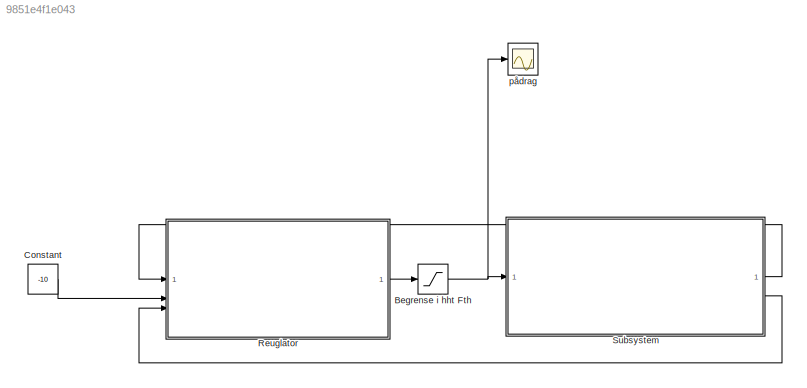
MODEL slx_9851e4f1e043
KIND model
CONFIG AbsTol = auto
CONFIG EnableMultiTasking = off
CONFIG FixedStep = auto
CONFIG MaxStep = auto
CONFIG MinStep = auto
CONFIG RelTol = 1e-3
CONFIG SampleTimeConstraint = Unconstrained
CONFIG SolverName = VariableStepAuto
CONFIG StartTime = 0.0
CONFIG StopTime = 180
BLOCK [Saturate] Begrense i hht Fth
  LowerLimit = 0
  UpperLimit = 845000*9
BLOCK [Constant] Constant
  Value = -10
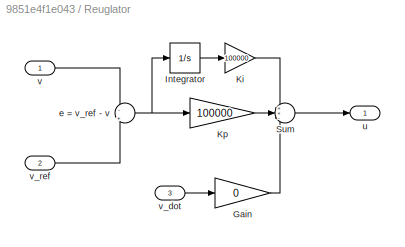
BLOCK [SubSystem] Reuglator
BLOCK [Gain] Reuglator/Gain
  Gain = 0
BLOCK [Integrator] Reuglator/Integrator
BLOCK [Gain] Reuglator/Ki
  Gain = 100000
BLOCK [Gain] Reuglator/Kp
  Gain = 100000
BLOCK [Sum] Reuglator/Sum
  Inputs = ++-
BLOCK [Sum] Reuglator/e = v_ref - v
  Inputs = -|+
  NameLocation = left
BLOCK [Outport] Reuglator/u
BLOCK [Inport] Reuglator/v
BLOCK [Inport] Reuglator/v_dot
  Port = 3
BLOCK [Inport] Reuglator/v_ref
  Port = 2
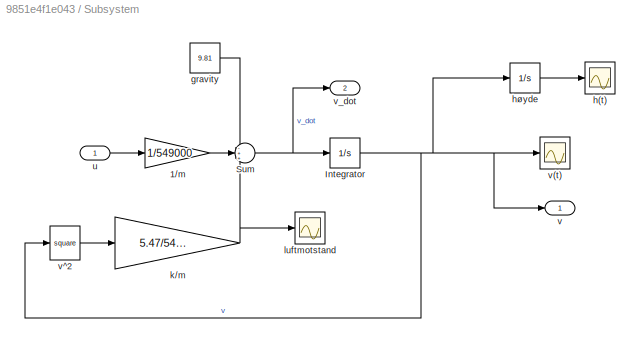
BLOCK [SubSystem] Subsystem
BLOCK [Gain] Subsystem/1//m
  Gain = 1/549000
BLOCK [Integrator] Subsystem/Integrator
  InitialCondition = -1000
BLOCK [Sum] Subsystem/Sum
  Inputs = -++
BLOCK [Constant] Subsystem/gravity
  Value = 9.81
BLOCK [Scope] Subsystem/h(t)
  Floating = off
  NumInputPorts = 1
  ScopeSpecificationString = Simulink.scopes.TimeScopeBlockCfg('CurrentConfiguration', extmgr.ConfigurationSet(extmgr.Configuration('Core','General UI',true),extmgr.Configuration('Core','Source UI',true),extmgr.Configuration('Sources','WiredSimulink',true,'DataLoggingVariableName','ScopeData1'),extmgr.Configuration('Visuals','Time Domain',true,'SerializedDisplays',{struct('MinYLimReal','-60152.07351','MaxYLimReal','17794.6748...<+1467ch>
BLOCK [Integrator] Subsystem/høyde
  InitialCondition = 10000
BLOCK [Gain] Subsystem/k//m
  Gain = 5.47/549000
BLOCK [Scope] Subsystem/luftmotstand
  Floating = off
  NumInputPorts = 1
  ScopeSpecificationString = Simulink.scopes.TimeScopeBlockCfg('CurrentConfiguration', extmgr.ConfigurationSet(extmgr.Configuration('Core','General UI',true),extmgr.Configuration('Core','Source UI',true),extmgr.Configuration('Sources','WiredSimulink',true,'DataLoggingVariableName','ScopeData3'),extmgr.Configuration('Visuals','Time Domain',true,'SerializedDisplays',{struct('MinYLimReal','4.72385','MaxYLimReal','5.56224','YLabe...<+1379ch>
BLOCK [Inport] Subsystem/u
BLOCK [Outport] Subsystem/v
BLOCK [Scope] Subsystem/v(t)
  Floating = off
  NumInputPorts = 1
  ScopeSpecificationString = Simulink.scopes.TimeScopeBlockCfg('CurrentConfiguration', extmgr.ConfigurationSet(extmgr.Configuration('Core','General UI',true),extmgr.Configuration('Core','Source UI',true),extmgr.Configuration('Sources','WiredSimulink',true),extmgr.Configuration('Visuals','Time Domain',true,'SerializedDisplays',{struct('MinYLimReal','-1136.11637','MaxYLimReal','225.04733','YLabelReal','','MinYLimMag','  0.00000...<+1414ch>
BLOCK [Math] Subsystem/v^2
  Operator = square
BLOCK [Outport] Subsystem/v_dot
  Port = 2
BLOCK [Scope] pådrag
  Floating = off
  NumInputPorts = 1
  ScopeSpecificationString = Simulink.scopes.TimeScopeBlockCfg('CurrentConfiguration', extmgr.ConfigurationSet(extmgr.Configuration('Core','General UI',true),extmgr.Configuration('Core','Source UI',true),extmgr.Configuration('Sources','WiredSimulink',true,'DataLoggingVariableName','ScopeData2'),extmgr.Configuration('Visuals','Time Domain',true,'SerializedDisplays',{struct('MinYLimReal','-1672332.17559','MaxYLimReal','8207859....<+1496ch>
NET Begrense i hht Fth:1 -> Subsystem:1, pådrag:1
LINE Constant:1 -> Reuglator:2
LINE Reuglator/Gain:1 -> Reuglator/Sum:3
LINE Reuglator/Integrator:1 -> Reuglator/Ki:1
LINE Reuglator/Ki:1 -> Reuglator/Sum:1
LINE Reuglator/Kp:1 -> Reuglator/Sum:2
LINE Reuglator/Sum:1 -> Reuglator/u:1
NET Reuglator/e = v_ref - v:1 -> Reuglator/Integrator:1, Reuglator/Kp:1
LINE Reuglator/v:1 -> Reuglator/e = v_ref - v:1
LINE Reuglator/v_dot:1 -> Reuglator/Gain:1
LINE Reuglator/v_ref:1 -> Reuglator/e = v_ref - v:2
LINE Reuglator:1 -> Begrense i hht Fth:1
LINE Subsystem/1//m:1 -> Subsystem/Sum:2
NET Subsystem/Integrator:1 -> Subsystem/høyde:1, Subsystem/v(t):1, Subsystem/v:1, Subsystem/v^2:1
NET Subsystem/Sum:1 -> Subsystem/Integrator:1, Subsystem/v_dot:1
LINE Subsystem/gravity:1 -> Subsystem/Sum:1
LINE Subsystem/høyde:1 -> Subsystem/h(t):1
NET Subsystem/k//m:1 -> Subsystem/Sum:3, Subsystem/luftmotstand:1
LINE Subsystem/u:1 -> Subsystem/1//m:1
LINE Subsystem/v^2:1 -> Subsystem/k//m:1
LINE Subsystem:1 -> Reuglator:1
LINE Subsystem:2 -> Reuglator:3
note: NET lines group one-source signal fan-out (src -> all destinations, sorted); 1:1 wires keep LINE
